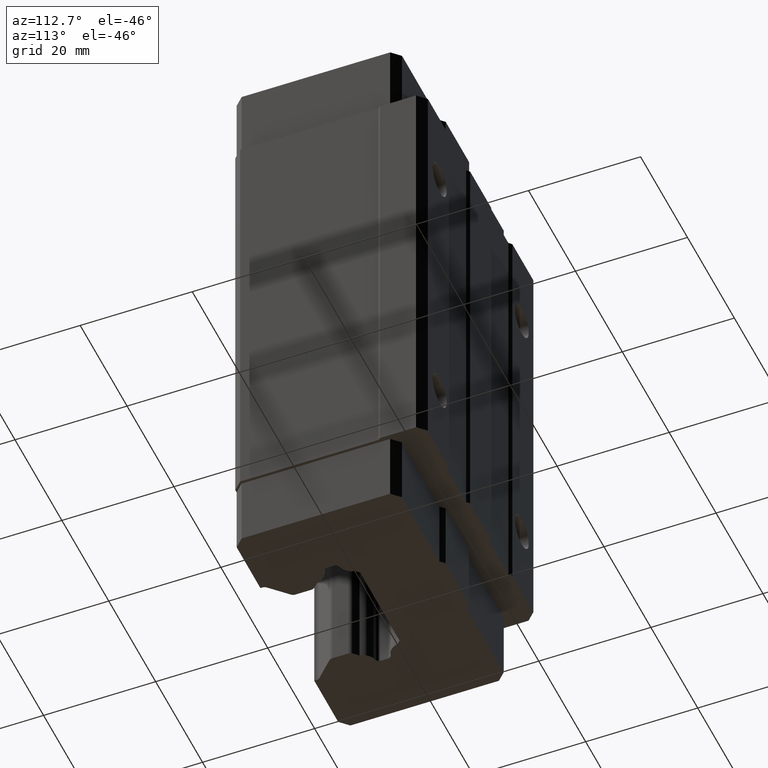
[diagram: clean part render]
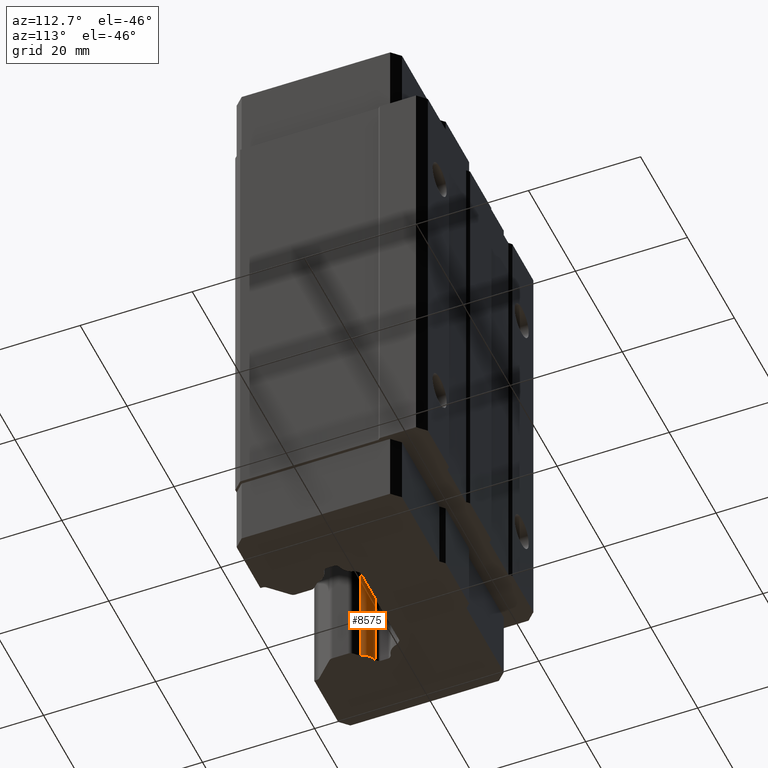
[diagram: same view with one face highlighted and labeled with its STEP entity id]
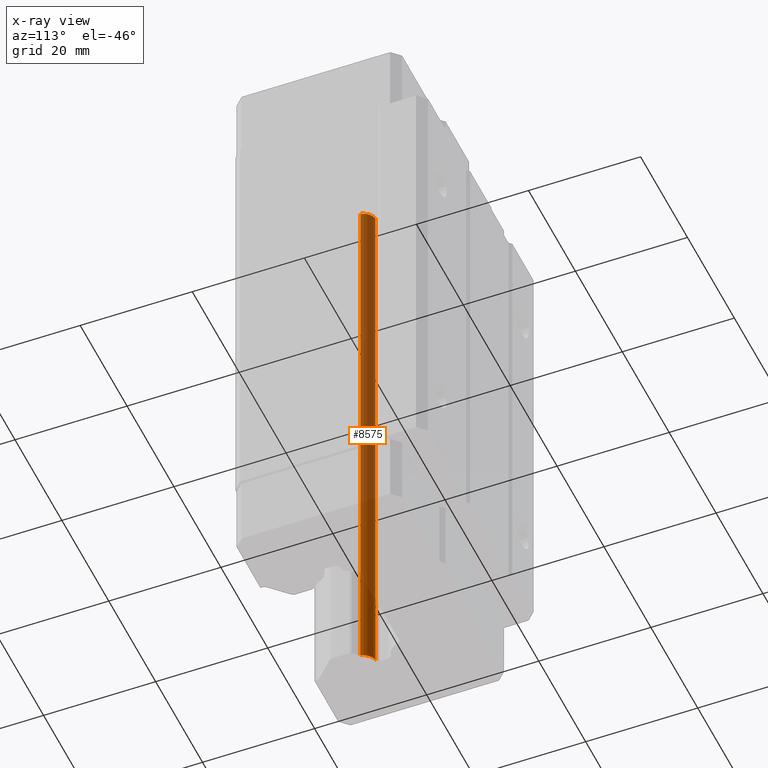
[diagram: x-ray of the same camera — body ghosted, the highlighted face saturated]
A machine part, auxiliary view. The second image highlights one B-rep face of the part: STEP entity #8575.
The next image is the same camera in x-ray: the body ghosted, the highlighted face saturated — about 84% of this face is hidden behind the body in this view.
In plain terms, the highlighted cylindrical surface (edge-blend (fillet) strip) has radius 2.43 mm, axis along (0, 0, 1).
Its self-contained STEP definition (entity closure, byte-faithful):
#276 = DIRECTION ( 'NONE',  ( 0.0000000000000000000, 0.0000000000000000000, 1.000000000000000000 ) ) ;
#277 = VECTOR ( 'NONE', #276, 1000.000000000000000 ) ;
#278 = CARTESIAN_POINT ( 'NONE',  ( -10.93986247307977600, -5.366243883702954200, -39.29999999999999700 ) ) ;
#279 = LINE ( 'NONE', #278, #277 ) ;
#280 = CARTESIAN_POINT ( 'NONE',  ( -10.93986247325196400, -5.366243883675344300, -52.29999999999999700 ) ) ;
#281 = CARTESIAN_POINT ( 'NONE',  ( -10.93986247325196400, -5.366243883675344300, 52.29999999999999000 ) ) ;
#362 = CARTESIAN_POINT ( 'NONE',  ( -9.070589883674658800, -7.235516473247811200, 52.29999999999999000 ) ) ;
#363 = DIRECTION ( 'NONE',  ( 0.0000000000000000000, 0.0000000000000000000, -1.000000000000000000 ) ) ;
#364 = VECTOR ( 'NONE', #363, 1000.000000000000000 ) ;
#365 = CARTESIAN_POINT ( 'NONE',  ( -9.070589883701751800, -7.235516473070678200, -39.29999999999999700 ) ) ;
#366 = LINE ( 'NONE', #365, #364 ) ;
#367 = CARTESIAN_POINT ( 'NONE',  ( -9.070589883674658800, -7.235516473247811200, -52.29999999999999700 ) ) ;
#3681 = DIRECTION ( 'NONE',  ( 1.000000000000000000, 0.0000000000000000000, 0.0000000000000000000 ) ) ;
#3682 = DIRECTION ( 'NONE',  ( 0.0000000000000000000, 0.0000000000000000000, 1.000000000000000000 ) ) ;
#3683 = CARTESIAN_POINT ( 'NONE',  ( -11.44706701449000100, -7.742721014494001100, 52.29999999999999000 ) ) ;
#3684 = AXIS2_PLACEMENT_3D ( 'NONE', #3683, #3682, #3681 ) ;
#3685 = CIRCLE ( 'NONE', #3684, 2.429999999999999700 ) ;
#3686 = DIRECTION ( 'NONE',  ( 1.000000000000000000, 0.0000000000000000000, 0.0000000000000000000 ) ) ;
#3687 = DIRECTION ( 'NONE',  ( 0.0000000000000000000, 0.0000000000000000000, 1.000000000000000000 ) ) ;
#3688 = AXIS2_PLACEMENT_3D ( 'NONE', #3695, #3687, #3686 ) ;
#3689 = CIRCLE ( 'NONE', #3688, 2.429999999999999700 ) ;
#3690 = DIRECTION ( 'NONE',  ( 1.000000000000000000, 0.0000000000000000000, 0.0000000000000000000 ) ) ;
#3691 = DIRECTION ( 'NONE',  ( 0.0000000000000000000, 0.0000000000000000000, 1.000000000000000000 ) ) ;
#3692 = CARTESIAN_POINT ( 'NONE',  ( -11.44706701449000100, -7.742721014494001100, -39.29999999999999700 ) ) ;
#3693 = AXIS2_PLACEMENT_3D ( 'NONE', #3692, #3691, #3690 ) ;
#3694 = CYLINDRICAL_SURFACE ( 'NONE', #3693, 2.429999999999999700 ) ;
#3695 = CARTESIAN_POINT ( 'NONE',  ( -11.44706701449000100, -7.742721014494001100, -52.29999999999999700 ) ) ;
#3696 = FACE_OUTER_BOUND ( 'NONE', #8576, .T. ) ;
#7242 = VERTEX_POINT ( 'NONE', #281 ) ;
#7243 = VERTEX_POINT ( 'NONE', #280 ) ;
#7244 = EDGE_CURVE ( 'NONE', #7243, #7242, #279, .T. ) ;
#7260 = VERTEX_POINT ( 'NONE', #367 ) ;
#7262 = EDGE_CURVE ( 'NONE', #7263, #7260, #366, .T. ) ;
#7263 = VERTEX_POINT ( 'NONE', #362 ) ;
#8575 = ADVANCED_FACE ( 'NONE', ( #3696 ), #3694, .T. ) ;
#8576 = EDGE_LOOP ( 'NONE', ( #8577, #8579, #8580, #8634 ) ) ;
#8577 = ORIENTED_EDGE ( 'NONE', *, *, #8578, .T. ) ;
#8578 = EDGE_CURVE ( 'NONE', #7260, #7243, #3689, .T. ) ;
#8579 = ORIENTED_EDGE ( 'NONE', *, *, #7244, .T. ) ;
#8580 = ORIENTED_EDGE ( 'NONE', *, *, #8581, .F. ) ;
#8581 = EDGE_CURVE ( 'NONE', #7263, #7242, #3685, .T. ) ;
#8634 = ORIENTED_EDGE ( 'NONE', *, *, #7262, .T. ) ;